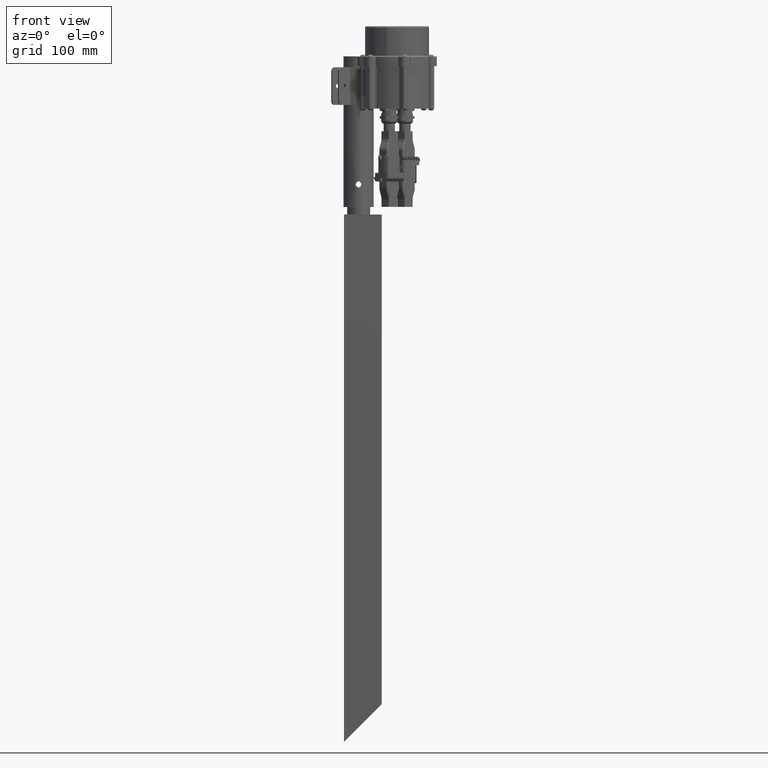
[diagram: clean part render]
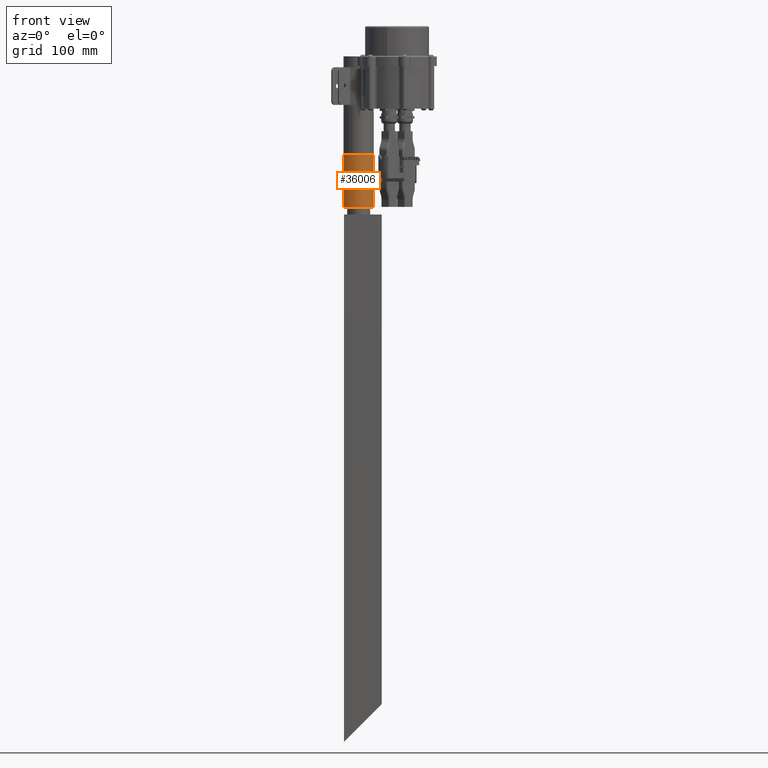
[diagram: same view with one face highlighted and labeled with its STEP entity id]
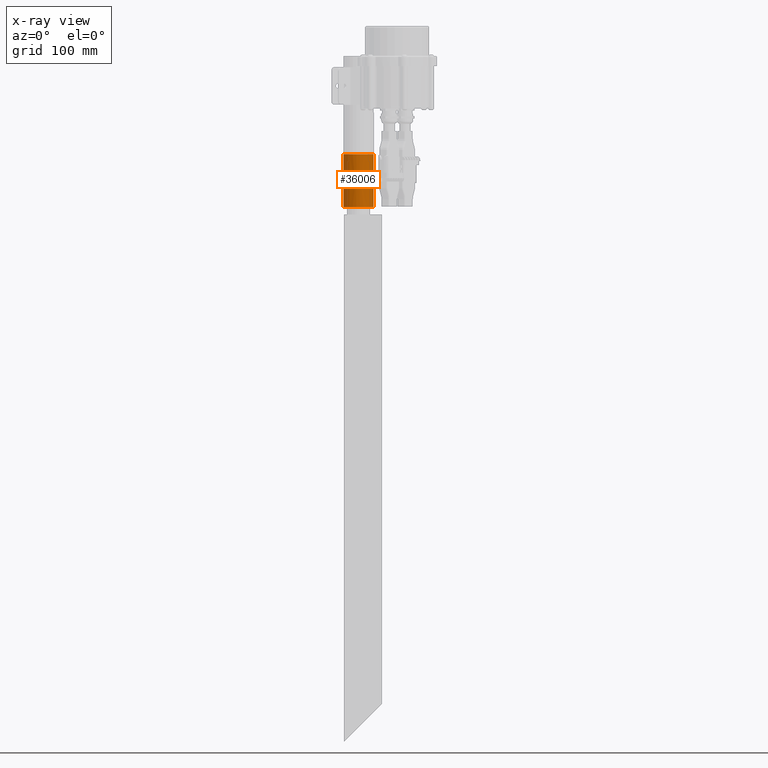
[diagram: x-ray of the same camera — body ghosted, the highlighted face saturated]
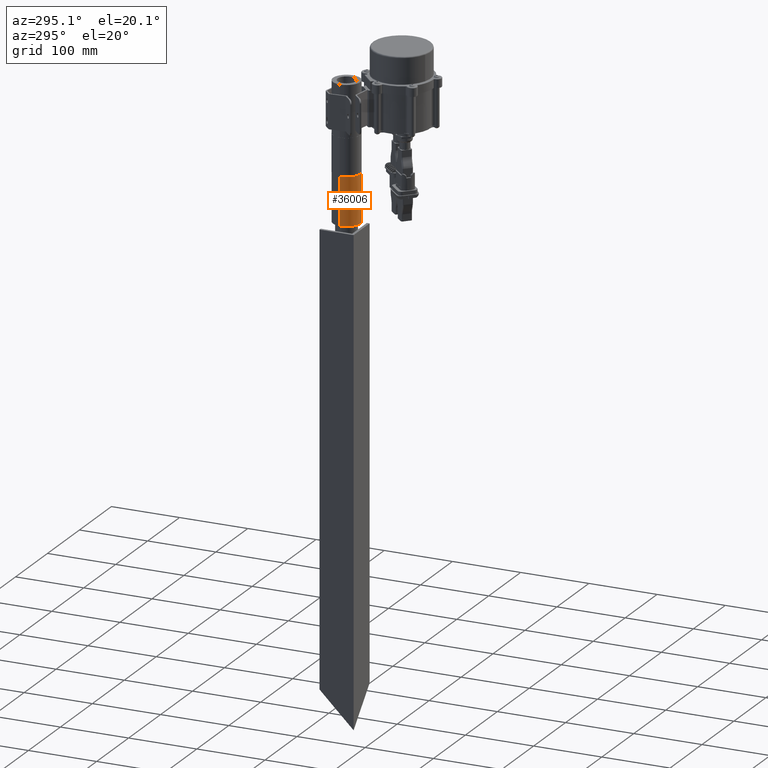
[diagram: same view with one face highlighted and labeled with its STEP entity id]
A machine part, front view. The second image highlights one B-rep face of the part: STEP entity #36006.
The next image is the same camera in x-ray: the body ghosted, the highlighted face saturated — about 0% of this face is hidden behind the body in this view.
A second angle (auxiliary view) of the same face is appended — the face is thin or edge-on in the first view.
In plain terms, the highlighted cylindrical surface (edge-blend (fillet) strip) has radius 20 mm, axis along (-0, 0, -1).
Its self-contained STEP definition (entity closure, byte-faithful):
#386 = CARTESIAN_POINT ( 'NONE',  ( 3.163717384922488200, -19.74915237648186300, 32.77587885422021000 ) ) ;
#506 = CARTESIAN_POINT ( 'NONE',  ( 3.642939369713134900, -19.66603119724990000, 27.89201163190804400 ) ) ;
#1459 = ORIENTED_EDGE ( 'NONE', *, *, #34463, .F. ) ;
#1603 = CARTESIAN_POINT ( 'NONE',  ( -0.5478180382495883000, -19.99435200588668600, 25.82664120330885300 ) ) ;
#1722 = CARTESIAN_POINT ( 'NONE',  ( -4.172175893427447800, -19.56006034836714100, 29.44504325435212500 ) ) ;
#1834 = CARTESIAN_POINT ( 'NONE',  ( -1.866512879255002500, -19.91432480769762500, 33.77239515835256600 ) ) ;
#2401 = CARTESIAN_POINT ( 'NONE',  ( -20.00000000000000000, 0.0000000000000000000, 70.00000000000000000 ) ) ;
#2808 = DIRECTION ( 'NONE',  ( 0.0000000000000000000, 0.0000000000000000000, 1.000000000000000000 ) ) ;
#3013 = ORIENTED_EDGE ( 'NONE', *, *, #14569, .T. ) ;
#3319 = CARTESIAN_POINT ( 'NONE',  ( 3.644306406445807900, -19.66579103796114600, 32.10600225674826200 ) ) ;
#3443 = CARTESIAN_POINT ( 'NONE',  ( 3.164613277795762100, -19.74902888785459300, 27.22487325469942800 ) ) ;
#3463 = VERTEX_POINT ( 'NONE', #4769 ) ;
#3947 = VERTEX_POINT ( 'NONE', #27021 ) ;
#4525 = CARTESIAN_POINT ( 'NONE',  ( -1.355840385163124900, -19.95560155982765200, 26.01545401097514400 ) ) ;
#4655 = CARTESIAN_POINT ( 'NONE',  ( -4.200128849857158300, -19.55400004249999000, 30.27528077194391200 ) ) ;
#4769 = CARTESIAN_POINT ( 'NONE',  ( 20.00000000000000000, 2.449293598294706500E-015, 70.00000000000000000 ) ) ;
#4794 = CARTESIAN_POINT ( 'NONE',  ( -1.094738525459735000, -19.97185734100688800, 34.06422171822861600 ) ) ;
#5551 = EDGE_CURVE ( 'NONE', #33501, #3947, #21979, .T. ) ;
#6268 = CARTESIAN_POINT ( 'NONE',  ( 3.983916382603975000, -19.59948544255731300, 31.35763819390512800 ) ) ;
#6385 = CARTESIAN_POINT ( 'NONE',  ( 2.563152241000642200, -19.83639465825728400, 26.66159512432502500 ) ) ;
#7374 = B_SPLINE_CURVE_WITH_KNOTS ( 'NONE', 3,
 ( #36658, #16169, #1603, #22049, #4525, #24993, #7492, #27933, #10406, #30881, #13350, #33814, #16301, #36797, #19197, #1722, #22183, #4655, #25107, #7617, #28069, #10524, #31004, #13485, #33944, #16419, #36930, #19338, #1834, #22313, #4794, #25232, #7734, #28196 ),
 .UNSPECIFIED., .F., .F.,
 ( 4, 2, 2, 2, 2, 2, 2, 2, 2, 2, 2, 2, 2, 2, 2, 2, 4 ),
 ( 0.01316783473262432900, 0.01399060964804361600, 0.01481338456346290200, 0.01563615947888218800, 0.01645893439430147500, 0.01728170930972076200, 0.01810448422514005000, 0.01892725914055933300, 0.01975003405597862100, 0.02057280897139790800, 0.02139558388681719200, 0.02221835880223647900, 0.02304113371765576700, 0.02386390863307505400, 0.02468668354849434100, 0.02550945846391362500, 0.02633223337933291200 ),
 .UNSPECIFIED. ) ;
#7492 = CARTESIAN_POINT ( 'NONE',  ( -2.106816570671444100, -19.89005349482302200, 26.35625767314313000 ) ) ;
#7617 = CARTESIAN_POINT ( 'NONE',  ( -4.066200111219907300, -19.58236448078944000, 31.08690158013098400 ) ) ;
#7633 = ORIENTED_EDGE ( 'NONE', *, *, #5551, .T. ) ;
#7734 = CARTESIAN_POINT ( 'NONE',  ( -0.2782654200800011000, -20.00000000000000000, 34.20000000000001000 ) ) ;
#9068 = CARTESIAN_POINT ( 'NONE',  ( 2.464223699866186900E-015, -20.00000000000000000, 34.20000000000000300 ) ) ;
#9080 = ORIENTED_EDGE ( 'NONE', *, *, #11356, .F. ) ;
#9187 = CARTESIAN_POINT ( 'NONE',  ( 4.173073762568113100, -19.55986981503911100, 30.54951977811594000 ) ) ;
#9324 = CARTESIAN_POINT ( 'NONE',  ( 1.862887576433855500, -19.91468012257299600, 26.22572578509388200 ) ) ;
#9767 = EDGE_LOOP ( 'NONE', ( #3013, #26685 ) ) ;
#10406 = CARTESIAN_POINT ( 'NONE',  ( -2.774575039624467700, -19.80757651203280600, 26.83508754189218600 ) ) ;
#10524 = CARTESIAN_POINT ( 'NONE',  ( -3.774719056171036400, -19.64084977159253100, 31.86195034453097500 ) ) ;
#11356 = EDGE_CURVE ( 'NONE', #35745, #3463, #27082, .T. ) ;
#11984 = CARTESIAN_POINT ( 'NONE',  ( 1.356976831066777100, -19.95554137041529000, 33.98426340179674600 ) ) ;
#12113 = CARTESIAN_POINT ( 'NONE',  ( 4.200108778611424400, -19.55400435359176500, 29.72687047538478900 ) ) ;
#12233 = CARTESIAN_POINT ( 'NONE',  ( 1.093420486391711600, -19.97191712390264900, 25.93548719834731700 ) ) ;
#12531 = LINE ( 'NONE', #17640, #20351 ) ;
#13350 = CARTESIAN_POINT ( 'NONE',  ( -3.338848791572807800, -19.71993705928639100, 27.43742100624696400 ) ) ;
#13485 = CARTESIAN_POINT ( 'NONE',  ( -3.340632898342821300, -19.71964007639547500, 32.56042299679841500 ) ) ;
#13645 = DIRECTION ( 'NONE',  ( 0.0000000000000000000, 0.0000000000000000000, 1.000000000000000000 ) ) ;
#14569 = EDGE_CURVE ( 'NONE', #22826, #26348, #33585, .T. ) ;
#14948 = CARTESIAN_POINT ( 'NONE',  ( 2.106248871028054000, -19.89010853751019100, 33.64402706649399000 ) ) ;
#15063 = CARTESIAN_POINT ( 'NONE',  ( 4.064964631846031300, -19.58262205852378900, 28.90836496294286600 ) ) ;
#15154 = DIRECTION ( 'NONE',  ( -0.0000000000000000000, -0.0000000000000000000, -1.000000000000000000 ) ) ;
#15196 = CARTESIAN_POINT ( 'NONE',  ( 0.2745390965992386400, -20.00000000000000400, 25.79999999999999700 ) ) ;
#16169 = CARTESIAN_POINT ( 'NONE',  ( -0.2744674568845524300, -19.99999999999999600, 25.80000000000000100 ) ) ;
#16301 = CARTESIAN_POINT ( 'NONE',  ( -3.772138045308465400, -19.64135040021533400, 28.13260208930638100 ) ) ;
#16419 = CARTESIAN_POINT ( 'NONE',  ( -2.778913330987651300, -19.80695987016902000, 33.16102730806841900 ) ) ;
#17640 = CARTESIAN_POINT ( 'NONE',  ( 20.00000000000000000, 2.449293598294706500E-015, 200.0000000000000000 ) ) ;
#17747 = CARTESIAN_POINT ( 'NONE',  ( 0.5518720823967793200, -19.99419648656537900, 34.17260632677036400 ) ) ;
#17860 = CARTESIAN_POINT ( 'NONE',  ( 2.777525012803545600, -19.80715734486932800, 33.16227226977982000 ) ) ;
#17985 = CARTESIAN_POINT ( 'NONE',  ( 3.774140768395606700, -19.64096362660108500, 28.13669472732837900 ) ) ;
#18078 = CARTESIAN_POINT ( 'NONE',  ( 0.0000000000000000000, 0.0000000000000000000, 200.0000000000000000 ) ) ;
#18362 = FACE_BOUND ( 'NONE', #9767, .T. ) ;
#18397 = ORIENTED_EDGE ( 'NONE', *, *, #25048, .T. ) ;
#19197 = CARTESIAN_POINT ( 'NONE',  ( -4.064755719125379600, -19.58266512661898400, 28.90785091719366300 ) ) ;
#19338 = CARTESIAN_POINT ( 'NONE',  ( -2.107803092557882300, -19.88996432545421900, 33.64330035821642200 ) ) ;
#20325 = CARTESIAN_POINT ( 'NONE',  ( 0.0000000000000000000, 0.0000000000000000000, 0.0000000000000000000 ) ) ;
#20351 = VECTOR ( 'NONE', #35193, 1000.000000000000000 ) ;
#20846 = CARTESIAN_POINT ( 'NONE',  ( 3.337282877563804400, -19.72021423128903100, 32.56490890376445400 ) ) ;
#20960 = CARTESIAN_POINT ( 'NONE',  ( 3.339193164920383000, -19.71987777117193700, 27.43788930395934900 ) ) ;
#21926 = CARTESIAN_POINT ( 'NONE',  ( 4.188291207877082900E-015, -20.00000000000000000, 25.79999999999999700 ) ) ;
#21979 = CIRCLE ( 'NONE', #24877, 20.00000000000000000 ) ;
#22049 = CARTESIAN_POINT ( 'NONE',  ( -1.092214860408389700, -19.97201250342688200, 25.93501599662998200 ) ) ;
#22183 = CARTESIAN_POINT ( 'NONE',  ( -4.199870236491760200, -19.55405558993126600, 29.72080140502661300 ) ) ;
#22313 = CARTESIAN_POINT ( 'NONE',  ( -1.361399914003745400, -19.95521969683762400, 33.98264056039924700 ) ) ;
#22826 = VERTEX_POINT ( 'NONE', #31094 ) ;
#22845 = VECTOR ( 'NONE', #22863, 1000.000000000000000 ) ;
#22863 = DIRECTION ( 'NONE',  ( -0.0000000000000000000, -0.0000000000000000000, -1.000000000000000000 ) ) ;
#23290 = DIRECTION ( 'NONE',  ( 1.000000000000000000, 0.0000000000000000000, 0.0000000000000000000 ) ) ;
#23673 = CARTESIAN_POINT ( 'NONE',  ( 0.2783380511143941900, -19.99999999999999600, 34.20000000000000300 ) ) ;
#23782 = CARTESIAN_POINT ( 'NONE',  ( 3.774252074308334800, -19.64093787567628600, 31.86273790123826500 ) ) ;
#23910 = CARTESIAN_POINT ( 'NONE',  ( 2.774427515353566200, -19.80761144543595600, 26.83477368699600900 ) ) ;
#24877 = AXIS2_PLACEMENT_3D ( 'NONE', #20325, #2808, #23290 ) ;
#24993 = CARTESIAN_POINT ( 'NONE',  ( -1.861490608868701300, -19.91479825350306900, 26.22511422665705200 ) ) ;
#25048 = EDGE_CURVE ( 'NONE', #35745, #33501, #30618, .T. ) ;
#25107 = CARTESIAN_POINT ( 'NONE',  ( -4.173073512967130600, -19.55986808386858700, 30.54844857985793300 ) ) ;
#25232 = CARTESIAN_POINT ( 'NONE',  ( -0.5528406535147831800, -19.99419679058095800, 34.17261522619426700 ) ) ;
#26186 = FACE_OUTER_BOUND ( 'NONE', #28924, .T. ) ;
#26348 = VERTEX_POINT ( 'NONE', #21926 ) ;
#26372 = EDGE_CURVE ( 'NONE', #26348, #22826, #7374, .T. ) ;
#26685 = ORIENTED_EDGE ( 'NONE', *, *, #26372, .T. ) ;
#26730 = CARTESIAN_POINT ( 'NONE',  ( 4.064955966322124900, -19.58262456365271500, 31.09208498123413000 ) ) ;
#26856 = CARTESIAN_POINT ( 'NONE',  ( 2.108888380588241700, -19.88981880880026100, 26.35757137026723000 ) ) ;
#26931 = DIRECTION ( 'NONE',  ( -1.000000000000000000, 0.0000000000000000000, 0.0000000000000000000 ) ) ;
#27021 = CARTESIAN_POINT ( 'NONE',  ( 20.00000000000000000, 2.449293598294706500E-015, 0.0000000000000000000 ) ) ;
#27082 = CIRCLE ( 'NONE', #32515, 20.00000000000000000 ) ;
#27933 = CARTESIAN_POINT ( 'NONE',  ( -2.563687760922364900, -19.83634061902229500, 26.66188087817690900 ) ) ;
#28069 = CARTESIAN_POINT ( 'NONE',  ( -3.984971638402671400, -19.59927255651121300, 31.35475609599885900 ) ) ;
#28196 = CARTESIAN_POINT ( 'NONE',  ( 2.464223699866186900E-015, -20.00000000000000000, 34.20000000000000300 ) ) ;
#28924 = EDGE_LOOP ( 'NONE', ( #1459, #9080, #18397, #7633 ) ) ;
#29548 = CARTESIAN_POINT ( 'NONE',  ( 1.089771314802170200, -19.97210190290812900, 34.06541570260252900 ) ) ;
#29656 = CARTESIAN_POINT ( 'NONE',  ( 4.199890559246255400, -19.55405122481805300, 30.27646478933032300 ) ) ;
#29773 = CARTESIAN_POINT ( 'NONE',  ( 1.355286002329646500, -19.95565168965235600, 26.01519187116542000 ) ) ;
#30618 = LINE ( 'NONE', #34529, #22845 ) ;
#30881 = CARTESIAN_POINT ( 'NONE',  ( -3.161920558549805800, -19.74944587354188400, 27.22201585688232200 ) ) ;
#31004 = CARTESIAN_POINT ( 'NONE',  ( -3.645917826818171600, -19.66548540220053800, 32.10306378507975500 ) ) ;
#31094 = CARTESIAN_POINT ( 'NONE',  ( 2.464223699866186900E-015, -20.00000000000000000, 34.20000000000000300 ) ) ;
#31149 = CARTESIAN_POINT ( 'NONE',  ( 0.0000000000000000000, 0.0000000000000000000, 70.00000000000000000 ) ) ;
#32370 = AXIS2_PLACEMENT_3D ( 'NONE', #18078, #15154, #26931 ) ;
#32458 = CARTESIAN_POINT ( 'NONE',  ( 1.865290054462120700, -19.91445983498254100, 33.77311992754982800 ) ) ;
#32515 = AXIS2_PLACEMENT_3D ( 'NONE', #31149, #13645, #34118 ) ;
#32595 = CARTESIAN_POINT ( 'NONE',  ( 4.172591554658771100, -19.55997198012133300, 29.44765569589234700 ) ) ;
#32726 = CARTESIAN_POINT ( 'NONE',  ( 0.5533532157933079800, -19.99417020490393800, 25.82751478211955000 ) ) ;
#33029 = CYLINDRICAL_SURFACE ( 'NONE', #32370, 20.00000000000000000 ) ;
#33501 = VERTEX_POINT ( 'NONE', #36302 ) ;
#33585 = B_SPLINE_CURVE_WITH_KNOTS ( 'NONE', 3,
 ( #9068, #23673, #17747, #29548, #11984, #32458, #14948, #35448, #17860, #386, #20846, #3319, #23782, #6268, #26730, #9187, #29656, #12113, #32595, #15063, #35568, #17985, #506, #20960, #3443, #23910, #6385, #26856, #9324, #29773, #12233, #32726, #15196, #35679 ),
 .UNSPECIFIED., .F., .F.,
 ( 4, 2, 2, 2, 2, 2, 2, 2, 2, 2, 2, 2, 2, 2, 2, 2, 4 ),
 ( 1.175126907510686400E-018, 0.0008229896707890216500, 0.001645979341578042000, 0.002468969012367062800, 0.003291958683156083100, 0.004114948353945103500, 0.004937938024734123800, 0.005760927695523144200, 0.006583917366312164500, 0.007406907037101184900, 0.008229896707890207000, 0.009052886378679226400, 0.009875876049468247700, 0.01069886572025726700, 0.01152185539104628800, 0.01234484506183530800, 0.01316783473262432900 ),
 .UNSPECIFIED. ) ;
#33814 = CARTESIAN_POINT ( 'NONE',  ( -3.642841742020636300, -19.66605026226151100, 27.89181917407362800 ) ) ;
#33944 = CARTESIAN_POINT ( 'NONE',  ( -3.164551635925963300, -19.74901596392046000, 32.77489925709987500 ) ) ;
#34118 = DIRECTION ( 'NONE',  ( 1.000000000000000000, 0.0000000000000000000, 0.0000000000000000000 ) ) ;
#34463 = EDGE_CURVE ( 'NONE', #3463, #3947, #12531, .T. ) ;
#34529 = CARTESIAN_POINT ( 'NONE',  ( -20.00000000000000000, 0.0000000000000000000, 200.0000000000000000 ) ) ;
#35193 = DIRECTION ( 'NONE',  ( -0.0000000000000000000, -0.0000000000000000000, -1.000000000000000000 ) ) ;
#35448 = CARTESIAN_POINT ( 'NONE',  ( 2.562249070927311100, -19.83652140974255900, 33.33917613590236300 ) ) ;
#35568 = CARTESIAN_POINT ( 'NONE',  ( 3.985370952293808300, -19.59919409296579600, 28.64616712573360100 ) ) ;
#35679 = CARTESIAN_POINT ( 'NONE',  ( 4.188291207877082900E-015, -20.00000000000000000, 25.79999999999999700 ) ) ;
#35745 = VERTEX_POINT ( 'NONE', #2401 ) ;
#36006 = ADVANCED_FACE ( 'NONE', ( #26186, #18362 ), #33029, .T. ) ;
#36302 = CARTESIAN_POINT ( 'NONE',  ( -20.00000000000000000, 0.0000000000000000000, 0.0000000000000000000 ) ) ;
#36658 = CARTESIAN_POINT ( 'NONE',  ( 4.188291207877082900E-015, -20.00000000000000000, 25.79999999999999700 ) ) ;
#36797 = CARTESIAN_POINT ( 'NONE',  ( -3.984101755403640000, -19.59945418065239100, 28.64237943728150900 ) ) ;
#36930 = CARTESIAN_POINT ( 'NONE',  ( -2.567297225680591000, -19.83588918349391200, 33.33548442241740900 ) ) ;